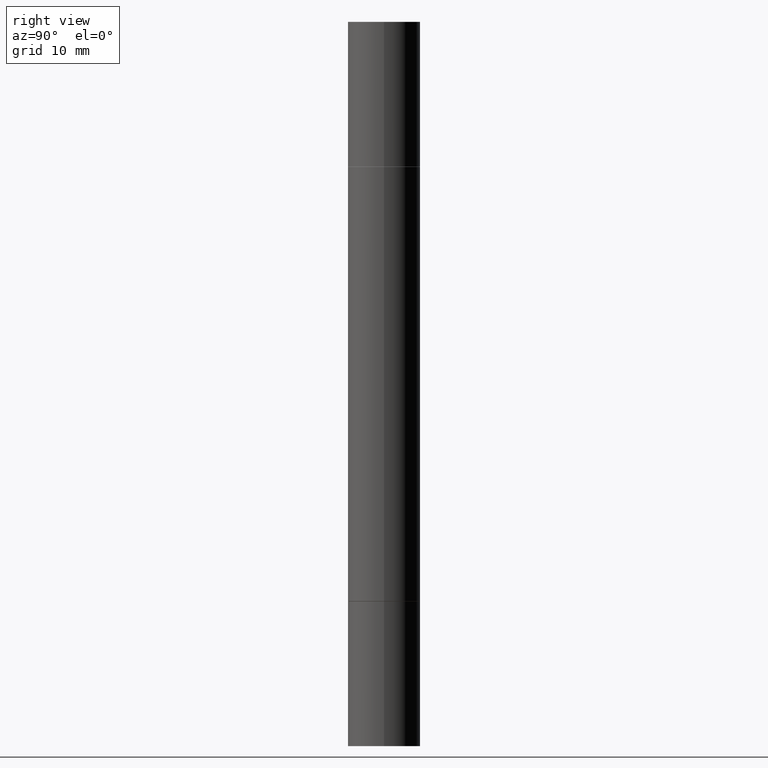
[diagram: clean part render]
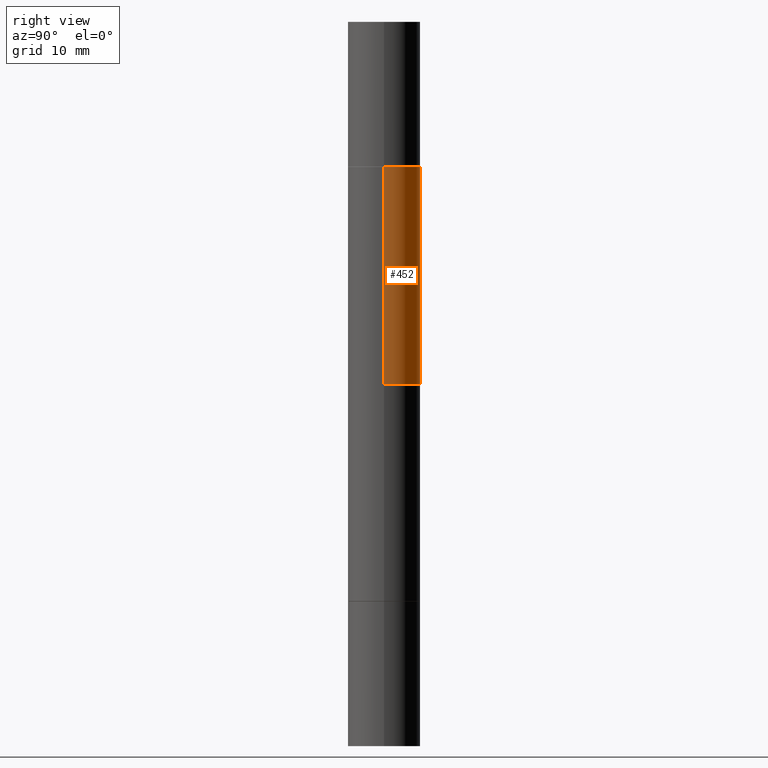
[diagram: same view with one face highlighted and labeled with its STEP entity id]
A machine part, right view. The second image highlights one B-rep face of the part: STEP entity #452.
In plain terms, the highlighted cylindrical surface (edge-blend (fillet) strip) has radius 3.175 mm, axis along (-0, -0, -1).
Its self-contained STEP definition (entity closure, byte-faithful):
#16 = CARTESIAN_POINT ( 'NONE',  ( 4.888492143564087591E-29, -1.748176755301667838E-15, -0.5009999999999996678 ) ) ;
#19 = VERTEX_POINT ( 'NONE', #618 ) ;
#32 = CARTESIAN_POINT ( 'NONE',  ( 3.056836007731420185E-29, -4.364351673553931682E-15, -1.249999999999999778 ) ) ;
#52 = DIRECTION ( 'NONE',  ( -2.445468806185136877E-29, -3.492890411551753071E-15, -1.000000000000000000 ) ) ;
#61 = DIRECTION ( 'NONE',  ( 2.445468806185136597E-29, 3.492890411551752677E-15, 1.000000000000000000 ) ) ;
#97 = DIRECTION ( 'NONE',  ( 1.000000000000000000, -6.982962677686262766E-15, 0.000000000000000000 ) ) ;
#104 = DIRECTION ( 'NONE',  ( -2.445468806185136877E-29, -3.492890411551753071E-15, -1.000000000000000000 ) ) ;
#117 = EDGE_LOOP ( 'NONE', ( #283, #643, #550, #230 ) ) ;
#132 = EDGE_CURVE ( 'NONE', #615, #296, #375, .T. ) ;
#134 = AXIS2_PLACEMENT_3D ( 'NONE', #192, #149, #97 ) ;
#149 = DIRECTION ( 'NONE',  ( -2.445468806185136597E-29, -3.492890411551752677E-15, -1.000000000000000000 ) ) ;
#159 = CARTESIAN_POINT ( 'NONE',  ( 0.1249999999999999861, -2.621047090012450585E-15, -0.5009999999999996678 ) ) ;
#188 = EDGE_CURVE ( 'NONE', #615, #358, #647, .T. ) ;
#192 = CARTESIAN_POINT ( 'NONE',  ( 0.000000000000000000, -8.730464687993621641E-15, -2.499999999999999556 ) ) ;
#230 = ORIENTED_EDGE ( 'NONE', *, *, #433, .F. ) ;
#236 = AXIS2_PLACEMENT_3D ( 'NONE', #16, #61, #444 ) ;
#239 = CARTESIAN_POINT ( 'NONE',  ( -0.1249999999999999861, -8.906145055802259979E-16, -0.5009999999999996678 ) ) ;
#283 = ORIENTED_EDGE ( 'NONE', *, *, #520, .F. ) ;
#296 = VERTEX_POINT ( 'NONE', #408 ) ;
#300 = FACE_OUTER_BOUND ( 'NONE', #117, .T. ) ;
#307 = CARTESIAN_POINT ( 'NONE',  ( -0.1249999999999998612, -7.872902438272180196E-15, -2.499999999999999556 ) ) ;
#330 = VECTOR ( 'NONE', #104, 39.37007874015748143 ) ;
#358 = VERTEX_POINT ( 'NONE', #239 ) ;
#360 = DIRECTION ( 'NONE',  ( -0.000000000000000000, -3.492185875197449130E-15, -1.000000000000000000 ) ) ;
#375 = LINE ( 'NONE', #532, #670 ) ;
#408 = CARTESIAN_POINT ( 'NONE',  ( 0.1249999999999998612, -3.929134549138581225E-15, -1.249999999999999778 ) ) ;
#433 = EDGE_CURVE ( 'NONE', #19, #296, #437, .T. ) ;
#437 = CIRCLE ( 'NONE', #447, 0.1249999999999998612 ) ;
#444 = DIRECTION ( 'NONE',  ( 1.000000000000000000, -6.982962677686267499E-15, 0.000000000000000000 ) ) ;
#447 = AXIS2_PLACEMENT_3D ( 'NONE', #32, #360, #572 ) ;
#452 = ADVANCED_FACE ( 'NONE', ( #300 ), #672, .T. ) ;
#520 = EDGE_CURVE ( 'NONE', #358, #19, #665, .T. ) ;
#532 = CARTESIAN_POINT ( 'NONE',  ( 0.1249999999999998612, -9.603335022704403402E-15, -2.499999999999999556 ) ) ;
#550 = ORIENTED_EDGE ( 'NONE', *, *, #132, .T. ) ;
#572 = DIRECTION ( 'NONE',  ( 0.000000000000000000, 1.000000000000000000, -4.370956789862825883E-15 ) ) ;
#615 = VERTEX_POINT ( 'NONE', #159 ) ;
#618 = CARTESIAN_POINT ( 'NONE',  ( -0.1249999999999998612, -2.198701964706358019E-15, -1.249999999999999778 ) ) ;
#643 = ORIENTED_EDGE ( 'NONE', *, *, #188, .F. ) ;
#647 = CIRCLE ( 'NONE', #236, 0.1249999999999999861 ) ;
#665 = LINE ( 'NONE', #307, #330 ) ;
#670 = VECTOR ( 'NONE', #52, 39.37007874015748143 ) ;
#672 = CYLINDRICAL_SURFACE ( 'NONE', #134, 0.1249999999999998612 ) ;